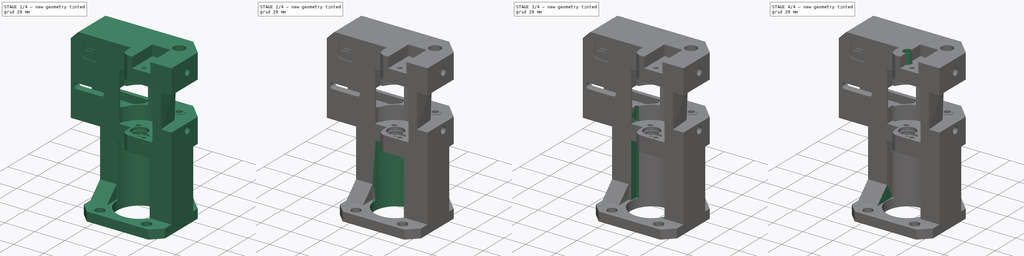
[diagram: build sequence overview — one tinted view per stage of 4, left to right]
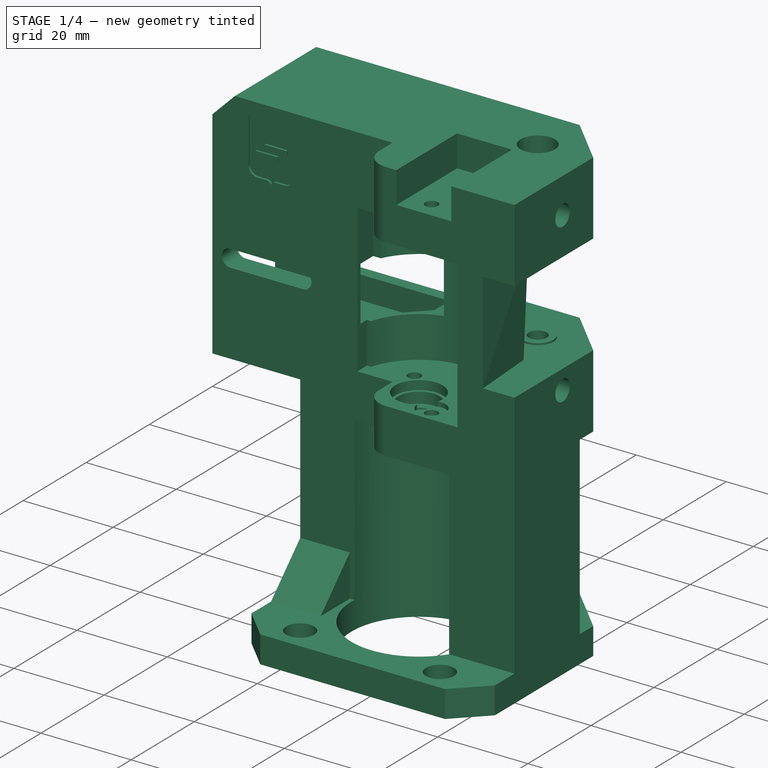
[diagram: stage 1 of 4 — iso view after this stage's code; geometry added in this stage tinted green]
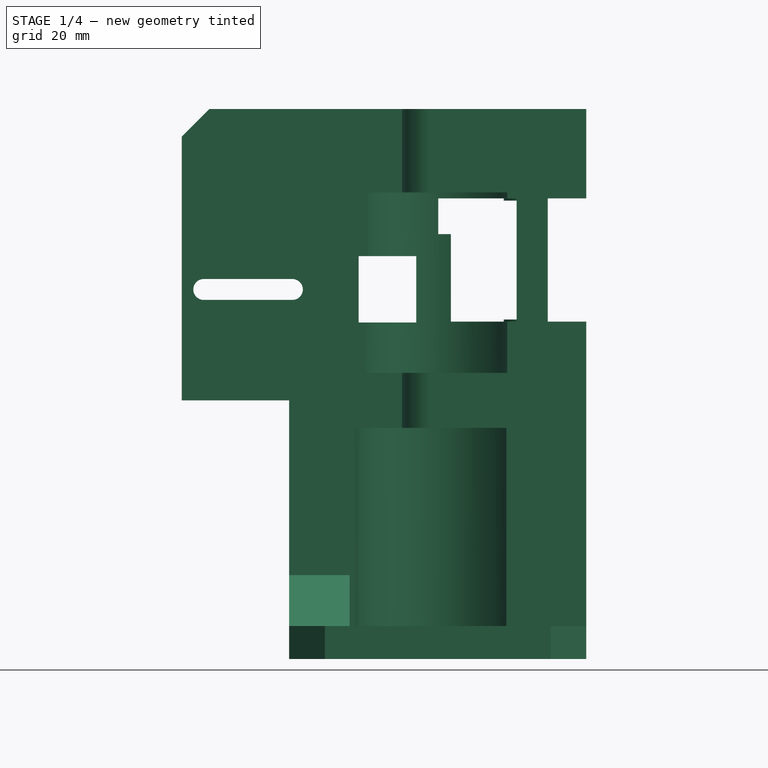
[diagram: stage 1 of 4 — front view after this stage's code; geometry added in this stage tinted green]
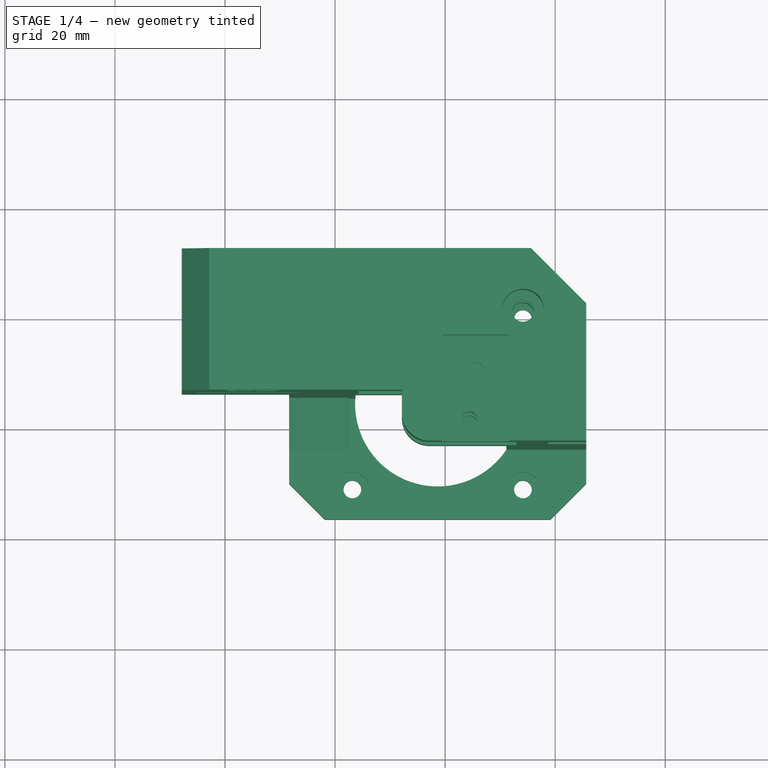
[diagram: stage 1 of 4 — top view after this stage's code; geometry added in this stage tinted green]
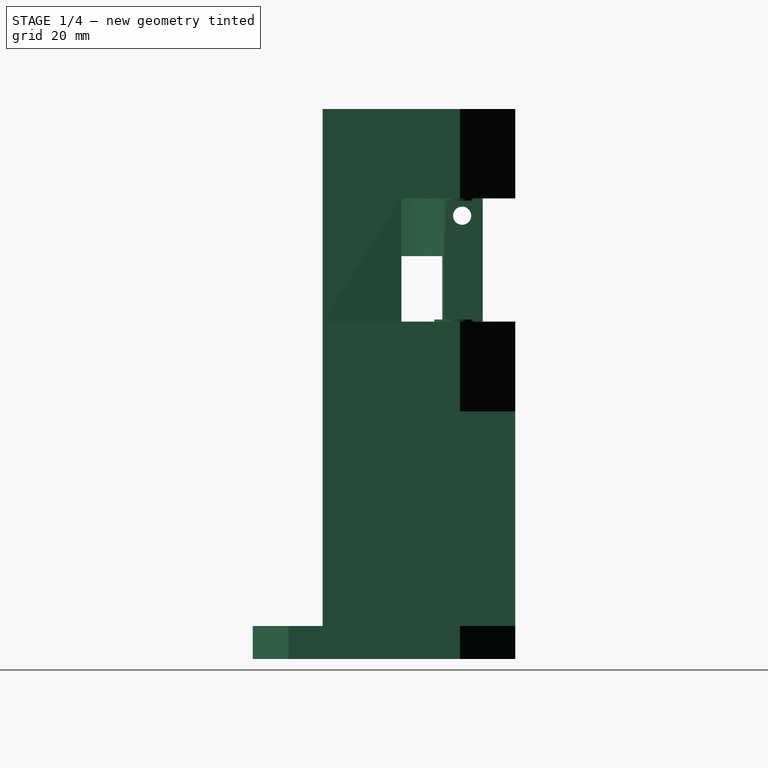
[diagram: stage 1 of 4 — right view after this stage's code; geometry added in this stage tinted green]
FCSTD DOCUMENT  (FreeCAD 1.0R38641 +468 (Git))
Label: k1_motor_mount_right
License: All rights reserved
LicenseURL: https://en.wikipedia.org/wiki/All_rights_reserved
objects: PartDesign::Pocket×6, Sketcher::SketchObject×5, PartDesign::Pad×2, Part::Feature×1, PartDesign::FeatureBase×1, PartDesign::Body×1, App::Part×1
note: 38 computed .brp shape members not serialized (recipe doc carries the construction recipe); baked Part::Feature solids carry a one-line shape summary decoded from their .brp

FEATURE [Part::Feature] Part__Feature  label="step"
  shape: bbox 73.5 x 47.7 x 99.95 mm, 158 faces (baked)
FEATURE [PartDesign::FeatureBase] BaseFeature
  BaseFeature = -> Part__Feature
  Suppressed = false
FEATURE [Sketcher::SketchObject] Sketch
  ArcFitTolerance = 1e-06
  AttachmentSupport = -> [BaseFeature]
  ExternalGeometry = -> [BaseFeature]
  FullyConstrained = true
  MakeInternals = false
  MapMode = 5
  Placement = pos=(6.2689e-12,2.42452e-11,-46) rot=(0,0,1;0rad)
  sketch-geometry (6):
    g0: LineSegment StartX=251.641 StartY=970.078 StartZ=0 EndX=258.141 EndY=963.578 EndZ=0
    g1: LineSegment StartX=305.641 StartY=970.078 StartZ=0 EndX=299.141 EndY=963.578 EndZ=0
    g2: LineSegment StartX=299.141 StartY=963.578 StartZ=0 EndX=305.641 EndY=963.578 EndZ=0
    g3: LineSegment StartX=305.641 StartY=963.578 StartZ=0 EndX=305.641 EndY=970.078 EndZ=0
    g4: LineSegment StartX=251.641 StartY=970.078 StartZ=0 EndX=251.641 EndY=963.578 EndZ=0
    g5: LineSegment StartX=251.641 StartY=963.578 StartZ=0 EndX=258.141 EndY=963.578 EndZ=0
  constraints (14):
    c: Coincident(g0,g-3)
    c: Coincident(g0,g-5)
    c: Coincident(g1,g-4)
    c: Coincident(g1,g-5)
    c: Coincident(g2,g1)
    c: Horizontal(g2)
    c: Coincident(g3,g2)
    c: Coincident(g3,g1)
    c: Vertical(g3)
    c: Coincident(g4,g0)
    c: Vertical(g4)
    c: Coincident(g5,g4)
    c: Coincident(g5,g0)
    c: Horizontal(g5)
FEATURE [PartDesign::Pocket] Pocket
  BaseFeature = -> BaseFeature
  Direction = (1.363e-13,5.271e-13,-1)
  Length = 6
  Length2 = 5
  Profile = -> Sketch
  ReferenceAxis = -> Sketch [N_Axis]
  Refine = true
  Suppressed = false
  Type = 0
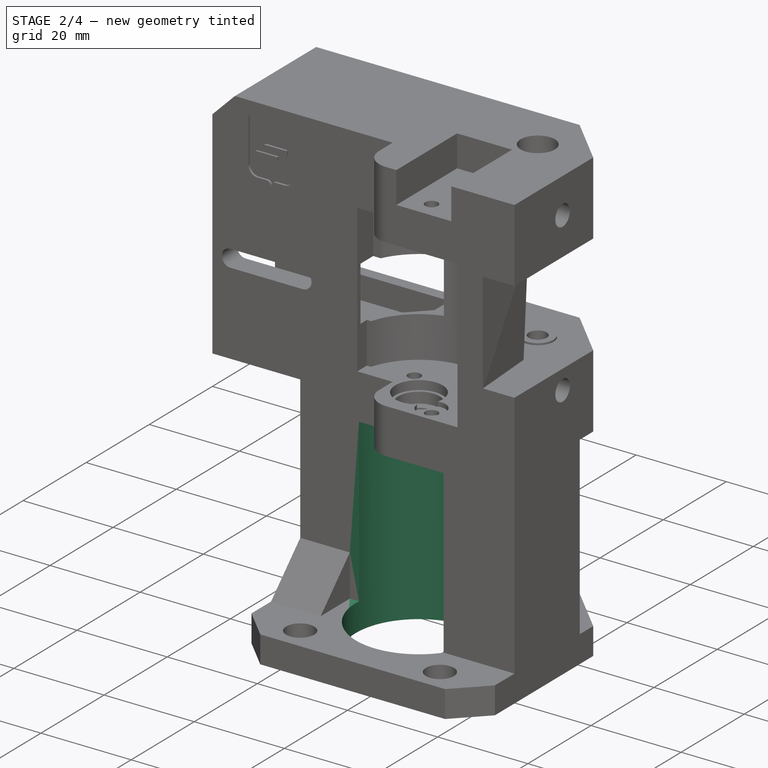
[diagram: stage 2 of 4 — iso view after this stage's code; geometry added in this stage tinted green]
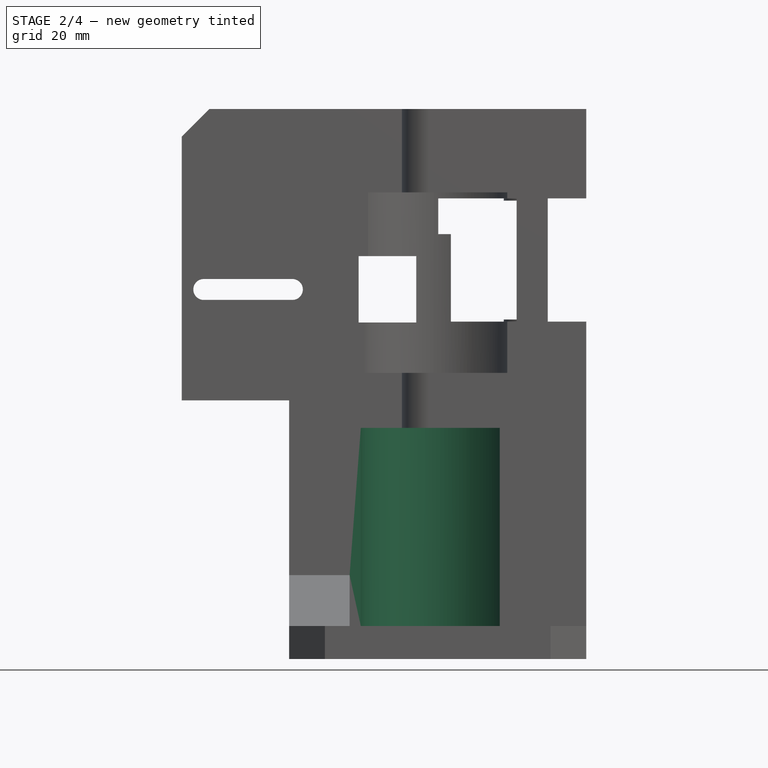
[diagram: stage 2 of 4 — front view after this stage's code; geometry added in this stage tinted green]
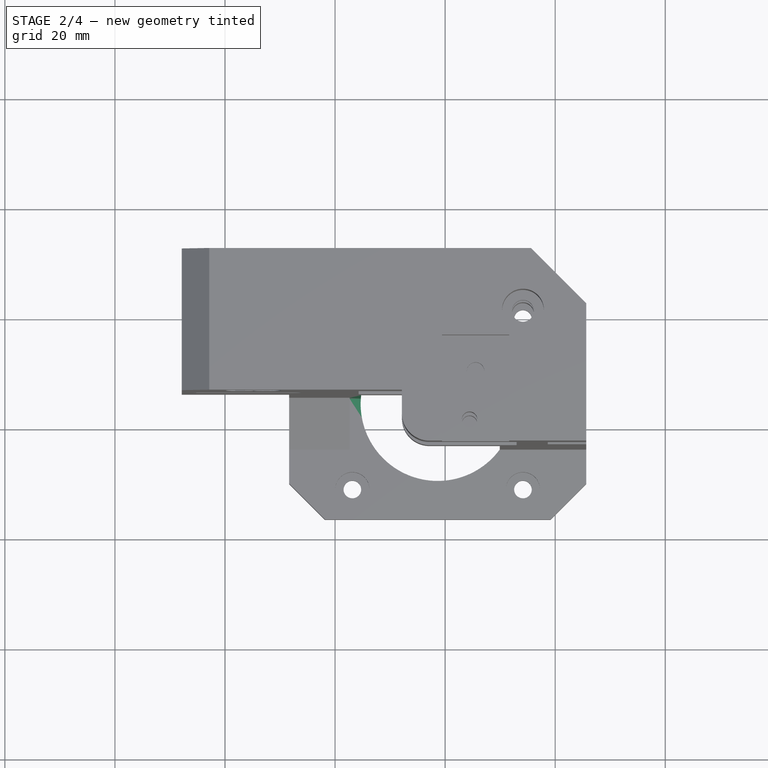
[diagram: stage 2 of 4 — top view after this stage's code; geometry added in this stage tinted green]
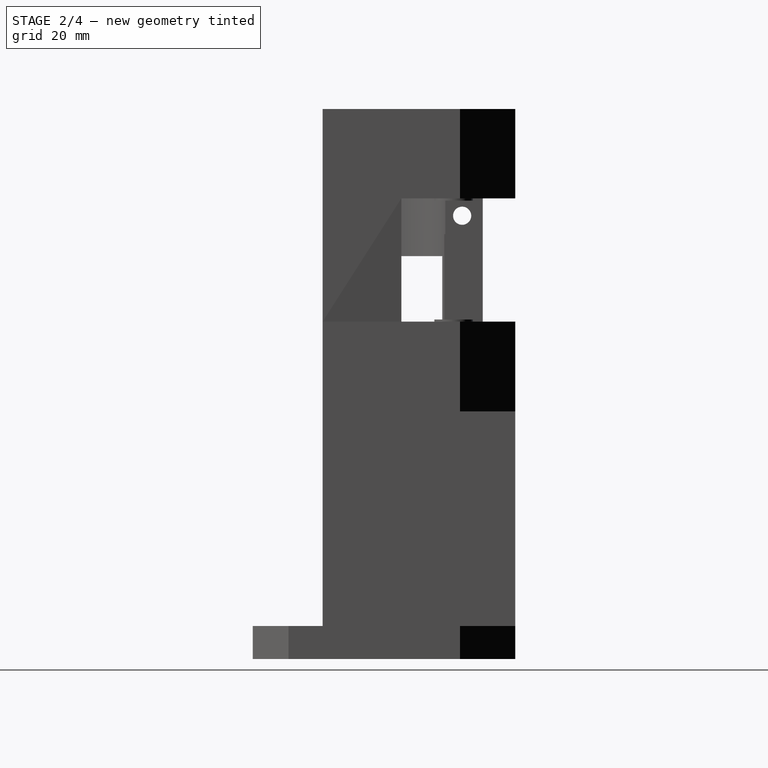
[diagram: stage 2 of 4 — right view after this stage's code; geometry added in this stage tinted green]
FEATURE [Sketcher::SketchObject] Sketch001
  ArcFitTolerance = 1e-06
  AttachmentSupport = -> [Pocket]
  ExternalGeometry = -> [Pocket]
  FullyConstrained = true
  MakeInternals = false
  MapMode = 5
  Placement = pos=(-1.3801e-12,-5.5526e-12,-52) rot=(1,0,0;3.14159rad)
  sketch-geometry (2):
    g0: Circle CenterX=278.641 CenterY=-984.578 CenterZ=0 NormalX=0 NormalY=0 NormalZ=1 AngleXU=0 Radius=14
    g1: Circle CenterX=278.641 CenterY=-984.578 CenterZ=0 NormalX=0 NormalY=0 NormalZ=1 AngleXU=0 Radius=15
  constraints (4):
    c: Coincident(g0,g-3)
    c: Coincident(g1,g0)
    c: Tangent(g1,g-3)
    c: Diameter(g0) = 28
FEATURE [PartDesign::Pad] Pad
  BaseFeature = -> Pocket
  Direction = (-2.65e-14,-1.068e-13,-1)
  Length = 10
  Length2 = 10
  Profile = -> Sketch001
  ReferenceAxis = -> Sketch001 [N_Axis]
  Refine = true
  Suppressed = false
  Type = 3
  UpToFace = -> Pocket [Face26]
FEATURE [PartDesign::Pocket] Pocket001
  BaseFeature = -> Pad
  Direction = (-2.24e-14,-1.028e-13,-1)
  Length = 0
  Length2 = 5
  Profile = -> Pad [Face27]
  Refine = true
  Suppressed = false
  Type = 3
  UpToFace = -> Pad [Face24]
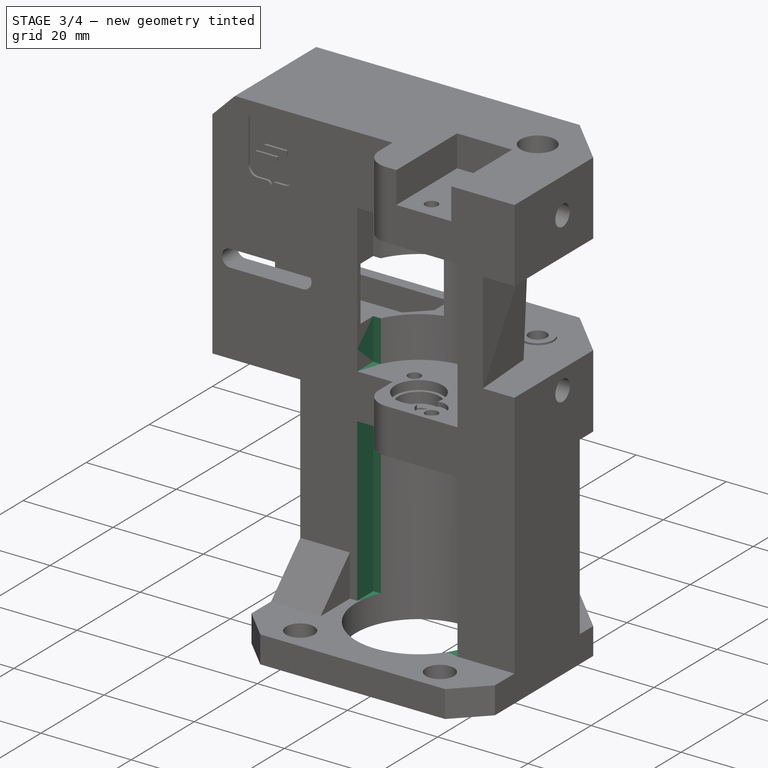
[diagram: stage 3 of 4 — iso view after this stage's code; geometry added in this stage tinted green]
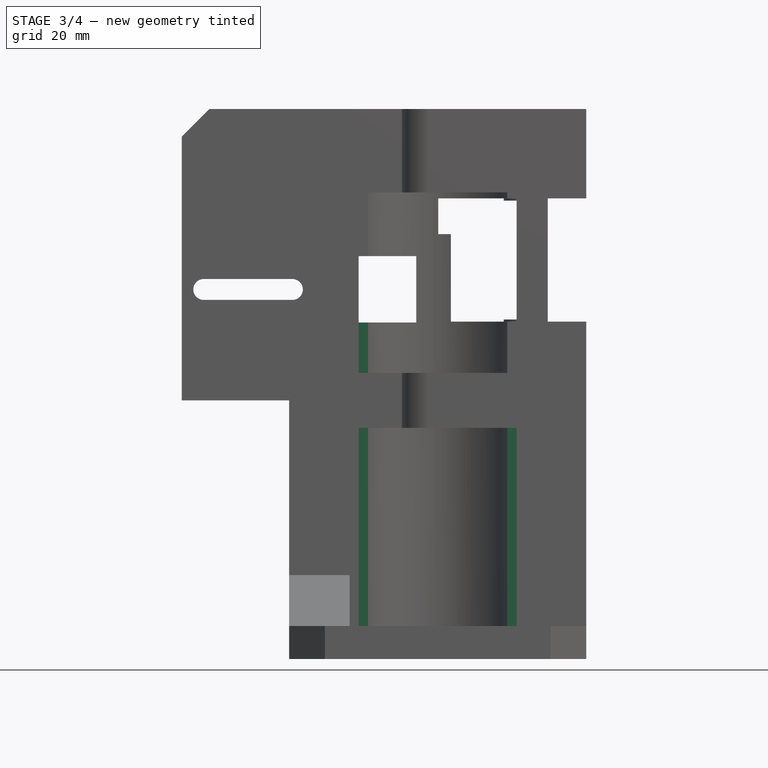
[diagram: stage 3 of 4 — front view after this stage's code; geometry added in this stage tinted green]
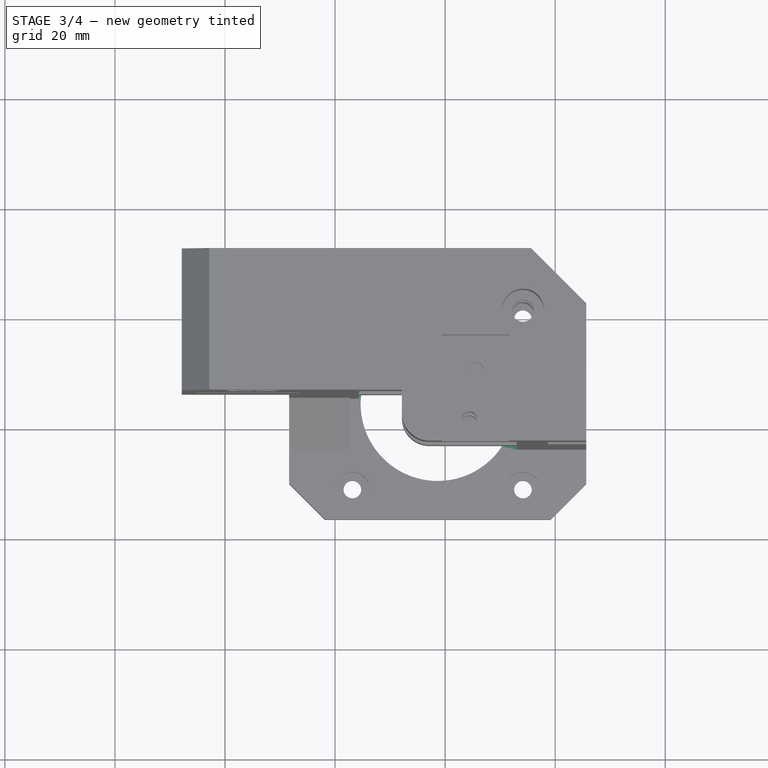
[diagram: stage 3 of 4 — top view after this stage's code; geometry added in this stage tinted green]
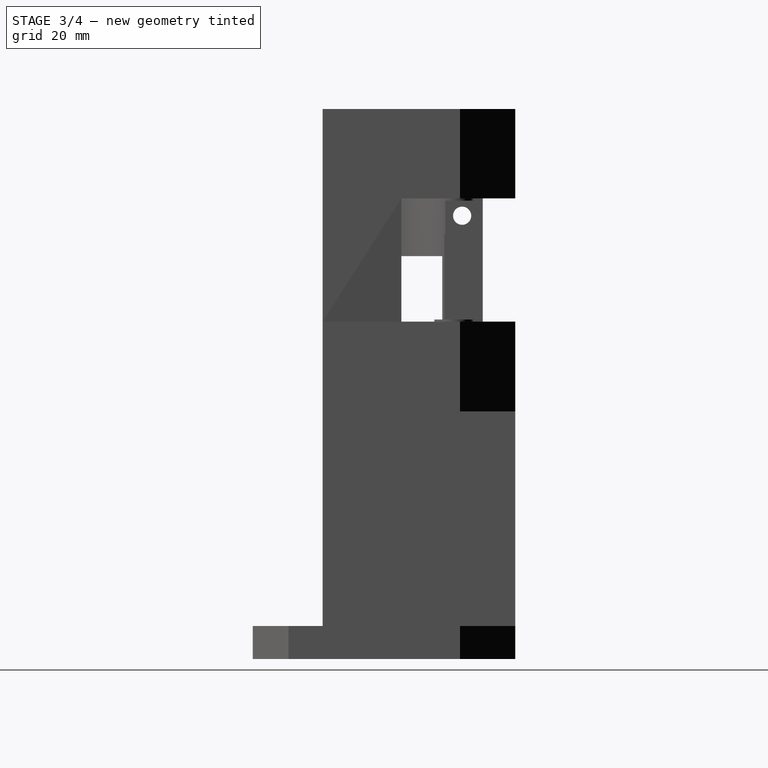
[diagram: stage 3 of 4 — right view after this stage's code; geometry added in this stage tinted green]
FEATURE [Sketcher::SketchObject] Sketch002
  ArcFitTolerance = 1e-06
  AttachmentSupport = -> [Pocket001]
  ExternalGeometry = -> [Pocket001]
  FullyConstrained = true
  MakeInternals = false
  MapMode = 5
  Placement = pos=(5.9165e-12,2.42949e-11,-46) rot=(0,0,1;0rad)
  sketch-geometry (4):
    g0: LineSegment StartX=292.641 StartY=976.278 StartZ=0 EndX=292.641 EndY=984.578 EndZ=0
    g1: LineSegment StartX=292.641 StartY=984.578 StartZ=0 EndX=278.641 EndY=984.578 EndZ=0
    g2: LineSegment StartX=278.641 StartY=984.578 StartZ=0 EndX=278.641 EndY=976.278 EndZ=0
    g3: LineSegment StartX=278.641 StartY=976.278 StartZ=0 EndX=292.641 EndY=976.278 EndZ=0
  constraints (11):
    c: Coincident(g0,g1)
    c: Coincident(g1,g2)
    c: Coincident(g2,g3)
    c: Coincident(g3,g0)
    c: Vertical(g0)
    c: Vertical(g2)
    c: Horizontal(g1)
    c: Horizontal(g3)
    c: PointOnObject(g0,g-3)
    c: Coincident(g1,g-4)
    c: Tangent(g0,g-4)
FEATURE [PartDesign::Pocket] Pocket002
  BaseFeature = -> Pocket001
  Direction = (1.286e-13,5.281e-13,-1)
  Length = 0
  Length2 = 5
  Profile = -> Sketch002
  ReferenceAxis = -> Sketch002 [N_Axis]
  Refine = true
  Suppressed = false
  Type = 3
  UpToFace = -> Pocket001 [Face30]
FEATURE [Sketcher::SketchObject] Sketch003
  ArcFitTolerance = 1e-06
  AttachmentSupport = -> [Pocket002]
  ExternalGeometry = -> [Pocket002]
  FullyConstrained = true
  MakeInternals = false
  MapMode = 5
  Placement = pos=(1.16071e-09,976.278,-1.45749e-10) rot=(1,0,0;1.5708rad)
  sketch-geometry (4):
    g0: LineSegment StartX=277.141 StartY=-10 StartZ=0 EndX=277.141 EndY=-46 EndZ=0
    g1: LineSegment StartX=277.141 StartY=-46 StartZ=0 EndX=292.991 EndY=-46 EndZ=0
    g2: LineSegment StartX=292.991 StartY=-46 StartZ=0 EndX=292.991 EndY=-10 EndZ=0
    g3: LineSegment StartX=292.991 StartY=-10 StartZ=0 EndX=277.141 EndY=-10 EndZ=0
  constraints (11):
    c: Coincident(g0,g1)
    c: Coincident(g1,g2)
    c: Coincident(g2,g3)
    c: Coincident(g3,g0)
    c: Vertical(g0)
    c: Vertical(g2)
    c: Horizontal(g1)
    c: Horizontal(g3)
    c: Coincident(g0,g-4)
    c: PointOnObject(g1,g-5)
    c: PointOnObject(g2,g-6)
FEATURE [PartDesign::Pocket] Pocket003
  BaseFeature = -> Pocket002
  Direction = (1.1889e-12,1,-1.493e-13)
  Length = 0
  Length2 = 5
  Profile = -> Sketch003
  ReferenceAxis = -> Sketch003 [N_Axis]
  Refine = true
  Suppressed = false
  Type = 3
  UpToFace = -> Pocket002 [Face76]
FEATURE [Sketcher::SketchObject] Sketch004
  ArcFitTolerance = 1e-06
  AttachmentSupport = -> [Pocket003]
  ExternalGeometry = -> [Pocket003]
  FullyConstrained = true
  MakeInternals = false
  MapMode = 5
  Placement = pos=(-3.62073e-10,985.528,4.64479e-10) rot=(1,0,0;1.5708rad)
  sketch-geometry (8):
    g0: LineSegment StartX=272.141 StartY=-10 StartZ=0 EndX=264.291 EndY=-10 EndZ=0
    g1: LineSegment StartX=264.291 StartY=-10 StartZ=0 EndX=264.291 EndY=-46 EndZ=0
    g2: LineSegment StartX=264.291 StartY=-46 StartZ=0 EndX=272.141 EndY=-46 EndZ=0
    g3: LineSegment StartX=272.141 StartY=-46 StartZ=0 EndX=272.141 EndY=-10 EndZ=0
    g4: LineSegment StartX=264.291 StartY=9.15 StartZ=0 EndX=264.291 EndY=-4.65985e-10 EndZ=0
    g5: LineSegment StartX=264.291 StartY=-4.65985e-10 StartZ=0 EndX=267.821 EndY=-4.65985e-10 EndZ=0
    g6: LineSegment StartX=267.821 StartY=-4.65985e-10 StartZ=0 EndX=267.821 EndY=9.15 EndZ=0
    g7: LineSegment StartX=267.821 StartY=9.15 StartZ=0 EndX=264.291 EndY=9.15 EndZ=0
  constraints (22):
    c: Coincident(g0,g1)
    c: Coincident(g1,g2)
    c: Coincident(g2,g3)
    c: Coincident(g3,g0)
    c: Horizontal(g0)
    c: Horizontal(g2)
    c: Vertical(g1)
    c: Vertical(g3)
    c: Coincident(g0,g-4)
    c: PointOnObject(g1,g-5)
    c: PointOnObject(g0,g-3)
    c: Coincident(g4,g5)
    c: Coincident(g5,g6)
    c: Coincident(g6,g7)
    c: Coincident(g7,g4)
    c: Vertical(g4)
    c: Vertical(g6)
    c: Horizontal(g5)
    c: Horizontal(g7)
    c: Coincident(g4,g-7)
    c: PointOnObject(g5,g-8)
    c: Distance(g7,g7) = 3.53
FEATURE [PartDesign::Pocket] Pocket004
  BaseFeature = -> Pocket003
  Direction = (-3.674e-13,1,4.712e-13)
  Length = 0
  Length2 = 5
  Profile = -> Sketch004
  ReferenceAxis = -> Sketch004 [N_Axis]
  Refine = true
  Suppressed = false
  Type = 3
  UpToFace = -> Pocket003 [Face80]
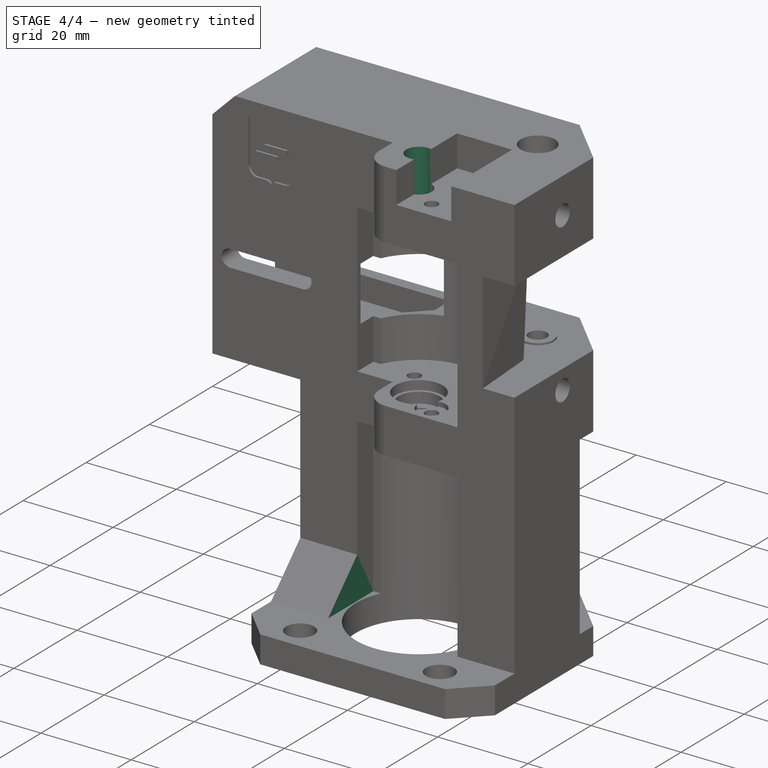
[diagram: stage 4 of 4 — iso view after this stage's code; geometry added in this stage tinted green]
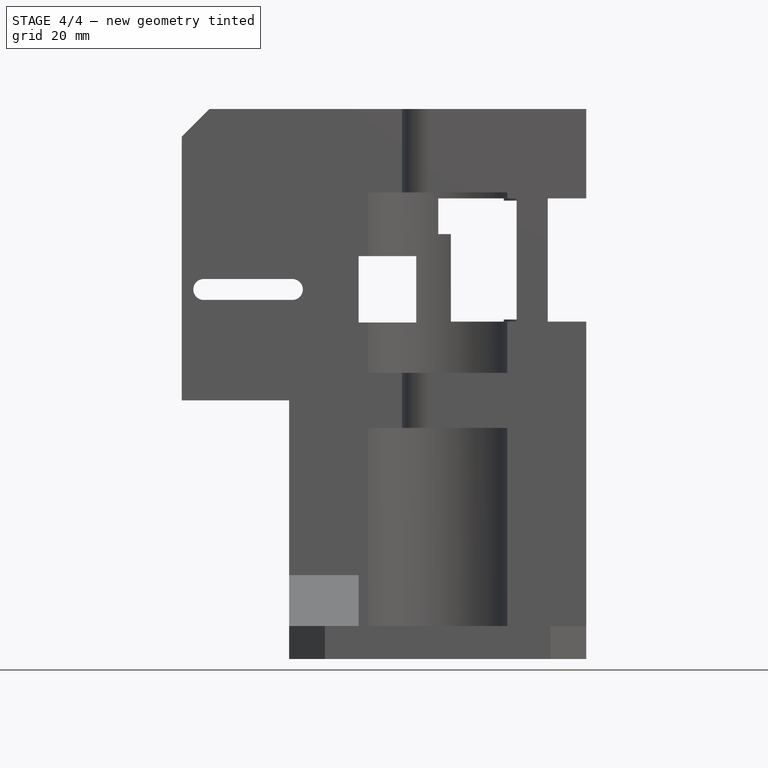
[diagram: stage 4 of 4 — front view after this stage's code; geometry added in this stage tinted green]
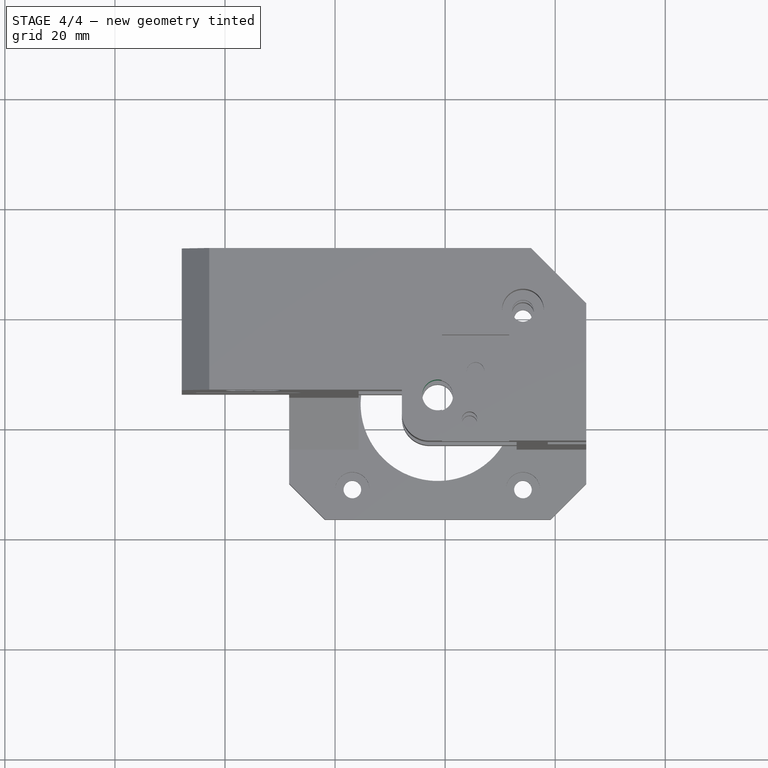
[diagram: stage 4 of 4 — top view after this stage's code; geometry added in this stage tinted green]
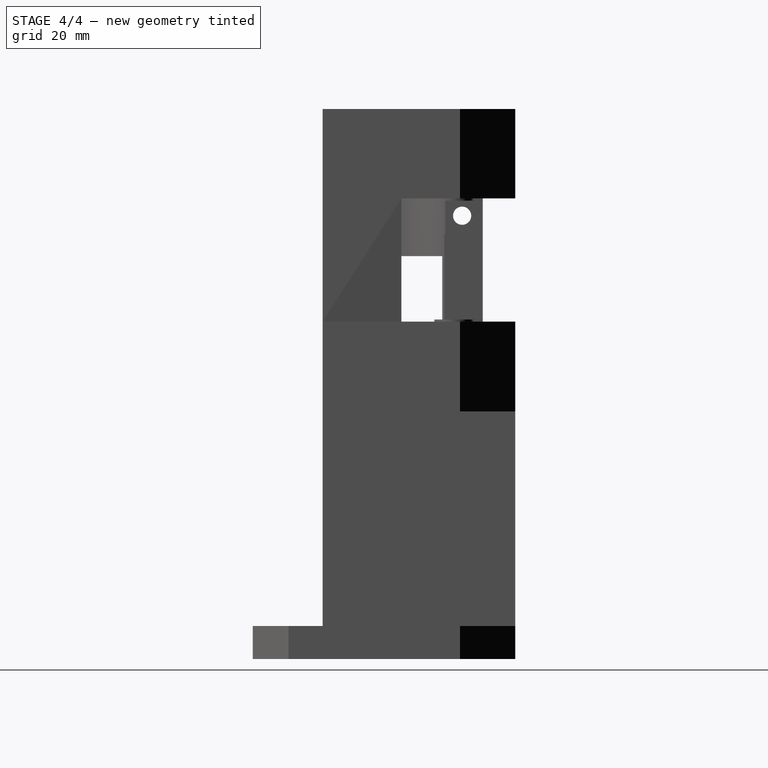
[diagram: stage 4 of 4 — right view after this stage's code; geometry added in this stage tinted green]
FEATURE [PartDesign::Pad] Pad001
  BaseFeature = -> Pocket004
  Direction = (1,-8.91e-14,-4.92e-14)
  Length = 10
  Length2 = 10
  Profile = -> Pocket004 [Face8]
  Refine = true
  Suppressed = false
  Type = 3
  UpToFace = -> Pocket004 [Face36]
FEATURE [PartDesign::Pocket] Pocket005
  BaseFeature = -> Pad001
  Direction = (-4.71e-14,-1.577e-13,1)
  Length = 5
  Length2 = 5
  Profile = -> Pad001 [Face159]
  Refine = true
  Suppressed = false
  Type = 1
FEATURE [PartDesign::Body] Body  label="k1_motor_mount_right"
  AllowCompound = false
  BaseFeature = -> Part__Feature
  Group = -> [BaseFeature,Sketch,Pocket,Sketch001,Pad,Pocket001,Sketch002,Pocket002,Sketch003,Pocket003,Sketch004,Pocket004,Pad001,Pocket005]
  Origin = -> Origin001
  Tip = -> Pocket005
FEATURE [App::Part] Part  label="k1_motor_mount_right_part"
  Group = -> [Part__Feature,Body]
  Origin = -> Origin
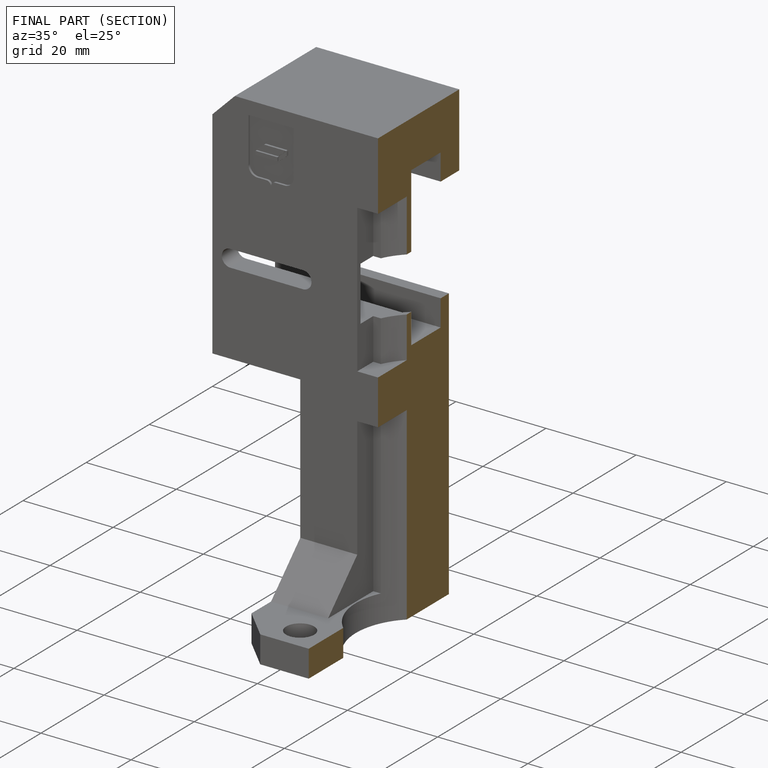
[diagram: finished part — half-section view (interior)]
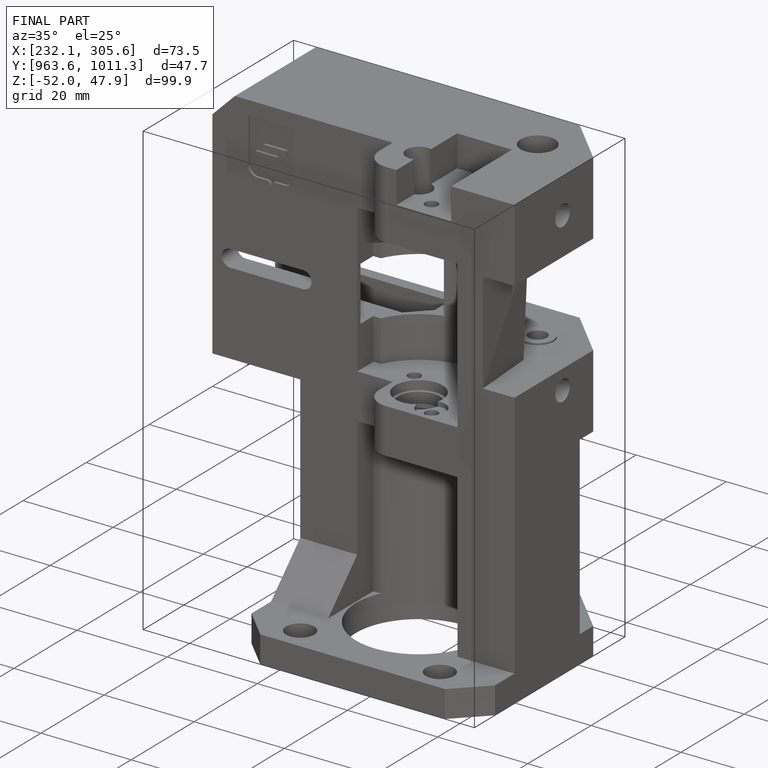
[diagram: finished part — iso view with bounding-box wireframe]
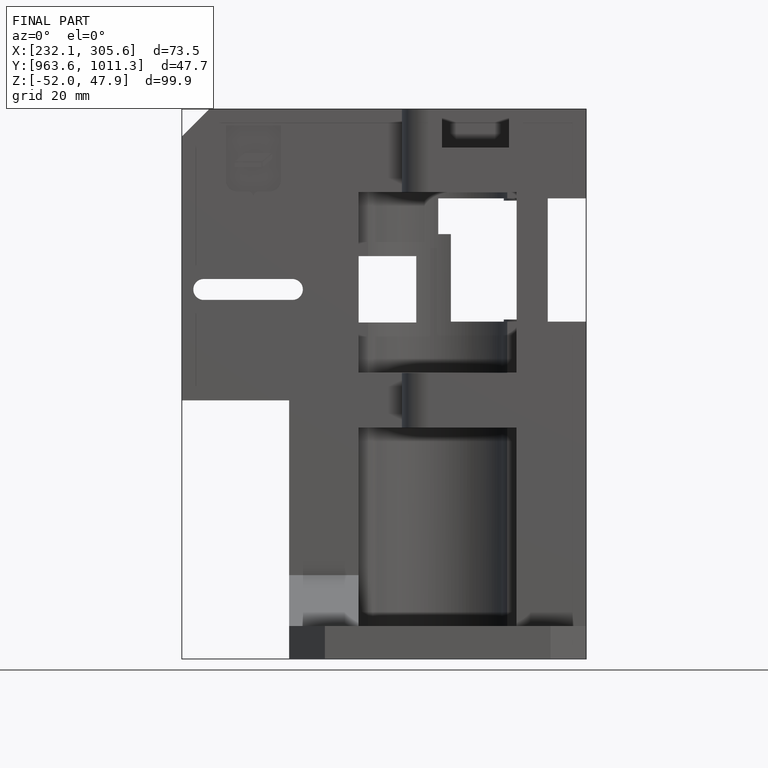
[diagram: finished part — front view with bounding-box wireframe]
